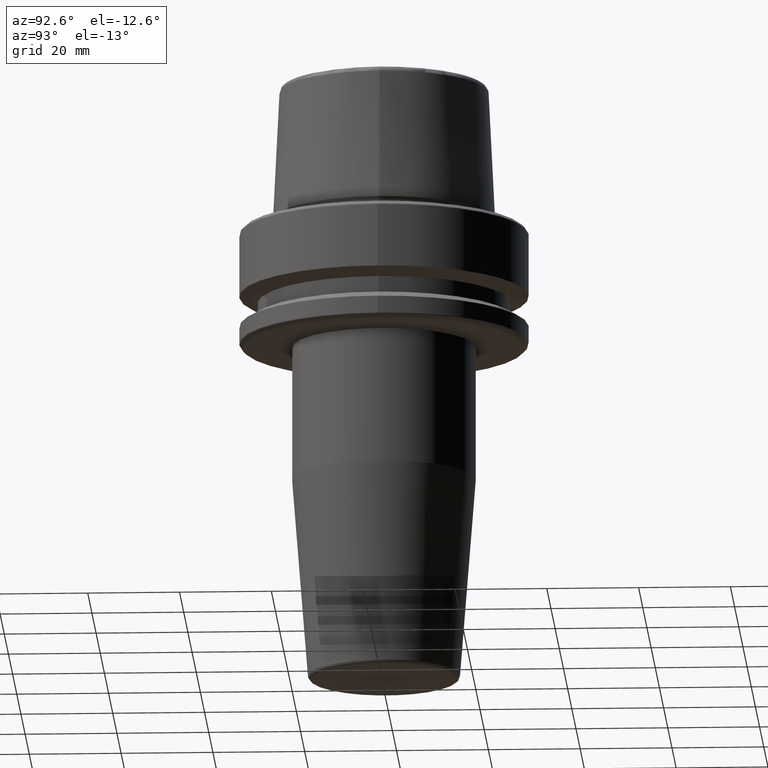
[diagram: clean part render]
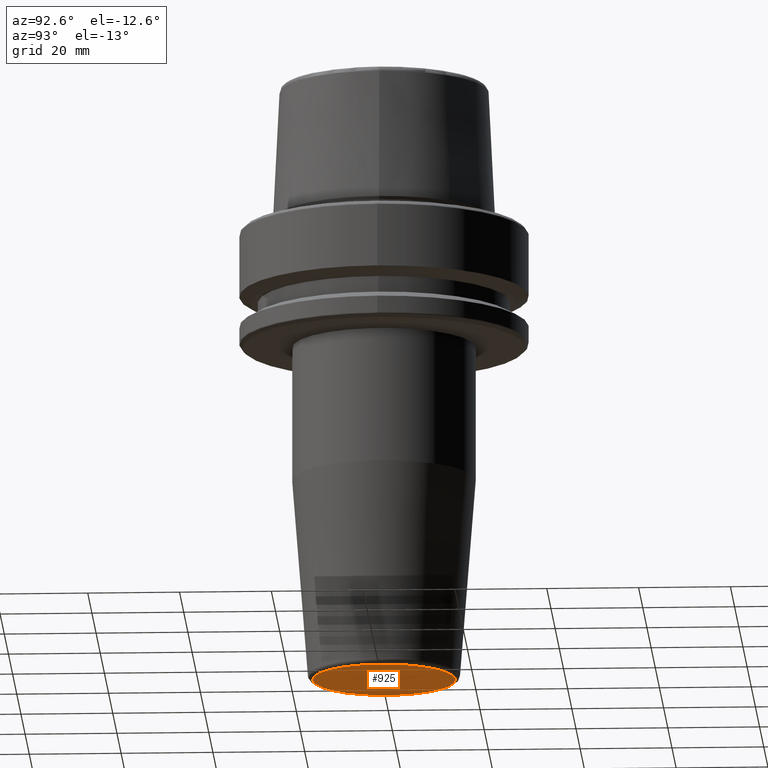
[diagram: same view with one face highlighted and labeled with its STEP entity id]
A machine part, auxiliary view. The second image highlights one B-rep face of the part: STEP entity #925.
In plain terms, the highlighted planar face has unit normal (0, 0, 1).
Its self-contained STEP definition (entity closure, byte-faithful):
#14 = ORIENTED_EDGE ( 'NONE', *, *, #1083, .T. ) ;
#44 = DIRECTION ( 'NONE',  ( 0.0000000000000000000, 1.000000000000000000, 0.0000000000000000000 ) ) ;
#106 = EDGE_CURVE ( 'NONE', #281, #501, #659, .T. ) ;
#197 = PLANE ( 'NONE',  #200 ) ;
#200 = AXIS2_PLACEMENT_3D ( 'NONE', #296, #990, #399 ) ;
#223 = FACE_OUTER_BOUND ( 'NONE', #784, .T. ) ;
#281 = VERTEX_POINT ( 'NONE', #1111 ) ;
#296 = CARTESIAN_POINT ( 'NONE',  ( 0.0000000000000000000, 7.678489940814809600E-032, -100.0000000000000000 ) ) ;
#304 = DIRECTION ( 'NONE',  ( 0.0000000000000000000, 1.000000000000000000, 0.0000000000000000000 ) ) ;
#359 = CARTESIAN_POINT ( 'NONE',  ( 0.0000000000000000000, -7.347880794884115200E-015, -100.0000000000000000 ) ) ;
#399 = DIRECTION ( 'NONE',  ( 0.0000000000000000000, -1.000000000000000000, 9.929568641735291500E-017 ) ) ;
#443 = ORIENTED_EDGE ( 'NONE', *, *, #106, .T. ) ;
#501 = VERTEX_POINT ( 'NONE', #515 ) ;
#515 = CARTESIAN_POINT ( 'NONE',  ( 1.968505614004525500E-015, -15.57560950834180200, -100.0000000000000000 ) ) ;
#616 = DIRECTION ( 'NONE',  ( -0.0000000000000000000, -9.929568641735291500E-017, -1.000000000000000000 ) ) ;
#634 = CIRCLE ( 'NONE', #1144, 15.57560950834179500 ) ;
#659 = CIRCLE ( 'NONE', #685, 15.57560950834179500 ) ;
#685 = AXIS2_PLACEMENT_3D ( 'NONE', #359, #1070, #304 ) ;
#784 = EDGE_LOOP ( 'NONE', ( #443, #14 ) ) ;
#925 = ADVANCED_FACE ( 'NONE', ( #223 ), #197, .F. ) ;
#990 = DIRECTION ( 'NONE',  ( 0.0000000000000000000, 9.929568641735291500E-017, 1.000000000000000000 ) ) ;
#1070 = DIRECTION ( 'NONE',  ( -0.0000000000000000000, -9.929568641735291500E-017, -1.000000000000000000 ) ) ;
#1083 = EDGE_CURVE ( 'NONE', #501, #281, #634, .T. ) ;
#1111 = CARTESIAN_POINT ( 'NONE',  ( 0.0000000000000000000, 15.57560950834178800, -100.0000000000000000 ) ) ;
#1144 = AXIS2_PLACEMENT_3D ( 'NONE', #1207, #616, #44 ) ;
#1207 = CARTESIAN_POINT ( 'NONE',  ( 0.0000000000000000000, -7.347880794884115200E-015, -100.0000000000000000 ) ) ;